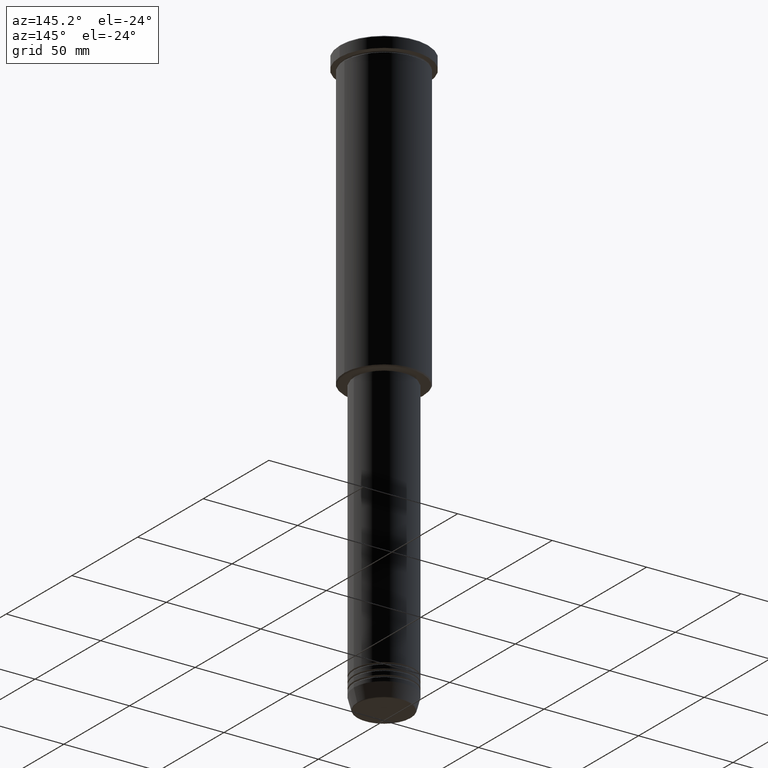
[diagram: clean part render]
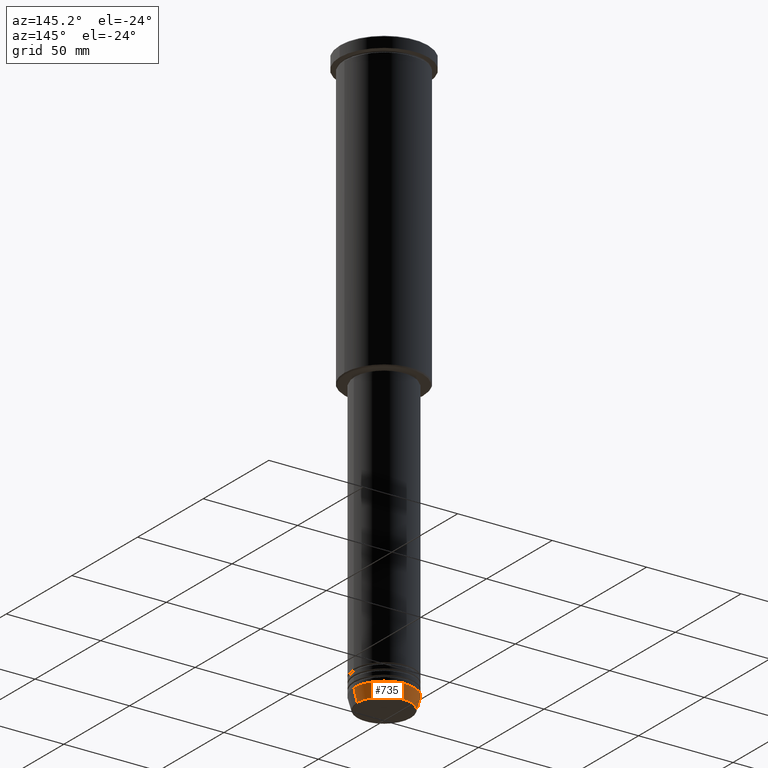
[diagram: same view with one face highlighted and labeled with its STEP entity id]
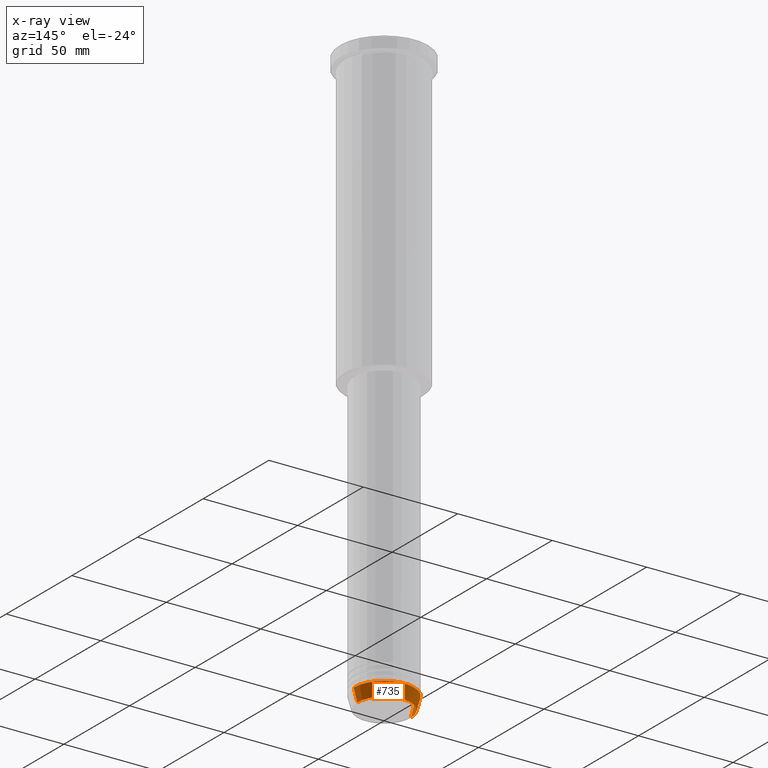
[diagram: x-ray of the same camera — body ghosted, the highlighted face saturated]
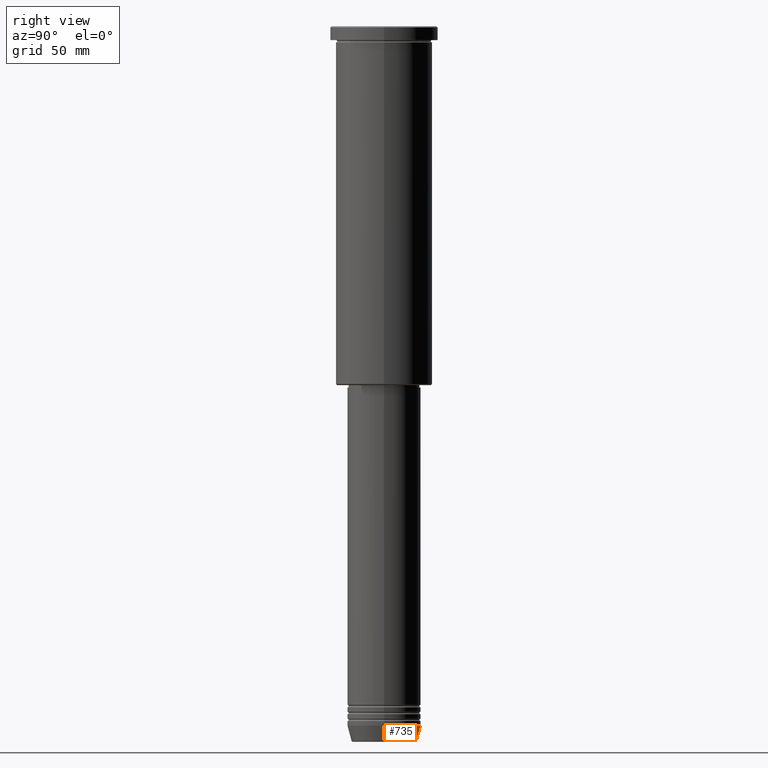
[diagram: same view with one face highlighted and labeled with its STEP entity id]
A machine part, auxiliary view. The second image highlights one B-rep face of the part: STEP entity #735.
The next image is the same camera in x-ray: the body ghosted, the highlighted face saturated — about 0% of this face is hidden behind the body in this view.
A second angle (right view) of the same face is appended — the face is thin or edge-on in the first view.
In plain terms, the highlighted conical surface has half-angle 15 deg.
Its self-contained STEP definition (entity closure, byte-faithful):
#6 = CARTESIAN_POINT ( 'NONE',  ( 14.22365507213718772, 0.000000000000000000, -310.6294095225512706 ) ) ;
#14 = CONICAL_SURFACE ( 'NONE', #905, 16.00000000000000000, 0.2617993877991500740 ) ;
#15 = DIRECTION ( 'NONE',  ( -0.2588190451025213501, 3.169619151431772337E-17, 0.9659258262890680902 ) ) ;
#30 = CARTESIAN_POINT ( 'NONE',  ( 0.000000000000000000, 0.000000000000000000, -310.6294095225512706 ) ) ;
#42 = CARTESIAN_POINT ( 'NONE',  ( 16.00000000000000000, 0.000000000000000000, -304.0000000000000000 ) ) ;
#59 = VECTOR ( 'NONE', #15, 1000.000000000000000 ) ;
#90 = DIRECTION ( 'NONE',  ( -0.000000000000000000, -0.000000000000000000, 1.000000000000000000 ) ) ;
#140 = VERTEX_POINT ( 'NONE', #991 ) ;
#141 = DIRECTION ( 'NONE',  ( -0.000000000000000000, -0.000000000000000000, 1.000000000000000000 ) ) ;
#147 = DIRECTION ( 'NONE',  ( 0.2588190451025213501, 0.000000000000000000, 0.9659258262890680902 ) ) ;
#158 = EDGE_CURVE ( 'NONE', #863, #159, #980, .T. ) ;
#159 = VERTEX_POINT ( 'NONE', #306 ) ;
#184 = EDGE_CURVE ( 'NONE', #863, #699, #632, .T. ) ;
#197 = EDGE_LOOP ( 'NONE', ( #1131, #1015, #223, #776 ) ) ;
#223 = ORIENTED_EDGE ( 'NONE', *, *, #425, .F. ) ;
#306 = CARTESIAN_POINT ( 'NONE',  ( -14.22365507213718772, 1.850665122131323337E-15, -310.6294095225512706 ) ) ;
#410 = VECTOR ( 'NONE', #147, 1000.000000000000000 ) ;
#425 = EDGE_CURVE ( 'NONE', #699, #140, #574, .T. ) ;
#445 = DIRECTION ( 'NONE',  ( 1.000000000000000000, 0.000000000000000000, 0.000000000000000000 ) ) ;
#454 = EDGE_CURVE ( 'NONE', #159, #140, #637, .T. ) ;
#574 = CIRCLE ( 'NONE', #727, 16.00000000000000000 ) ;
#584 = CARTESIAN_POINT ( 'NONE',  ( 0.000000000000000000, 0.000000000000000000, -304.0000000000000000 ) ) ;
#632 = LINE ( 'NONE', #42, #410 ) ;
#637 = LINE ( 'NONE', #862, #59 ) ;
#699 = VERTEX_POINT ( 'NONE', #1056 ) ;
#727 = AXIS2_PLACEMENT_3D ( 'NONE', #900, #90, #445 ) ;
#735 = ADVANCED_FACE ( 'NONE', ( #951 ), #14, .T. ) ;
#749 = DIRECTION ( 'NONE',  ( 1.000000000000000000, 0.000000000000000000, 0.000000000000000000 ) ) ;
#776 = ORIENTED_EDGE ( 'NONE', *, *, #184, .F. ) ;
#862 = CARTESIAN_POINT ( 'NONE',  ( -16.00000000000000000, 1.959434878635765131E-15, -304.0000000000000000 ) ) ;
#863 = VERTEX_POINT ( 'NONE', #6 ) ;
#900 = CARTESIAN_POINT ( 'NONE',  ( 0.000000000000000000, 0.000000000000000000, -304.0000000000000000 ) ) ;
#905 = AXIS2_PLACEMENT_3D ( 'NONE', #584, #141, #962 ) ;
#951 = FACE_OUTER_BOUND ( 'NONE', #197, .T. ) ;
#962 = DIRECTION ( 'NONE',  ( 1.000000000000000000, 0.000000000000000000, 0.000000000000000000 ) ) ;
#980 = CIRCLE ( 'NONE', #1160, 14.22365507213718772 ) ;
#991 = CARTESIAN_POINT ( 'NONE',  ( -16.00000000000000000, 1.959434878635765131E-15, -304.0000000000000000 ) ) ;
#1015 = ORIENTED_EDGE ( 'NONE', *, *, #454, .T. ) ;
#1042 = DIRECTION ( 'NONE',  ( -0.000000000000000000, -0.000000000000000000, 1.000000000000000000 ) ) ;
#1056 = CARTESIAN_POINT ( 'NONE',  ( 16.00000000000000000, 0.000000000000000000, -304.0000000000000000 ) ) ;
#1131 = ORIENTED_EDGE ( 'NONE', *, *, #158, .T. ) ;
#1160 = AXIS2_PLACEMENT_3D ( 'NONE', #30, #1042, #749 ) ;